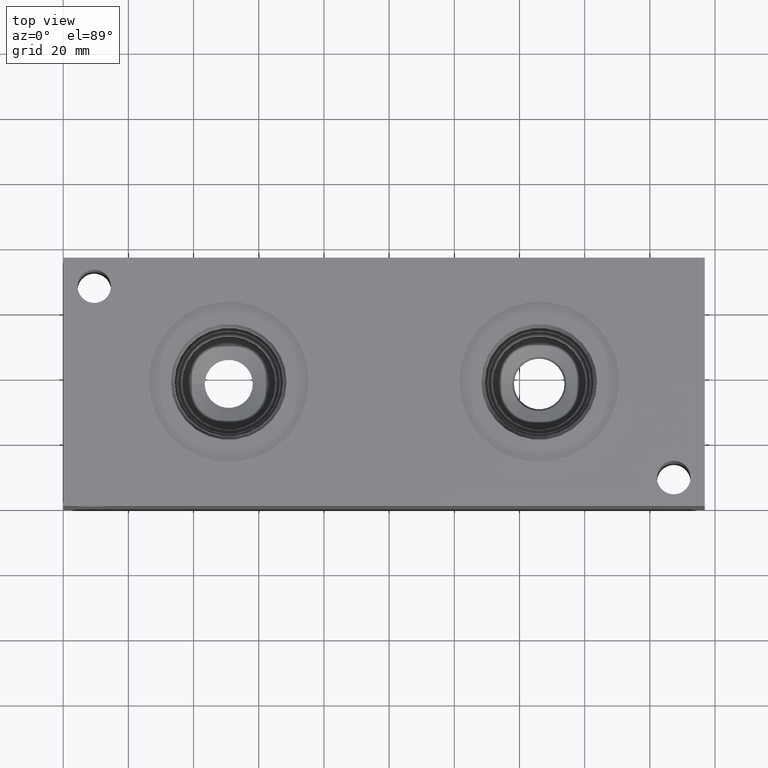
[diagram: clean part render]
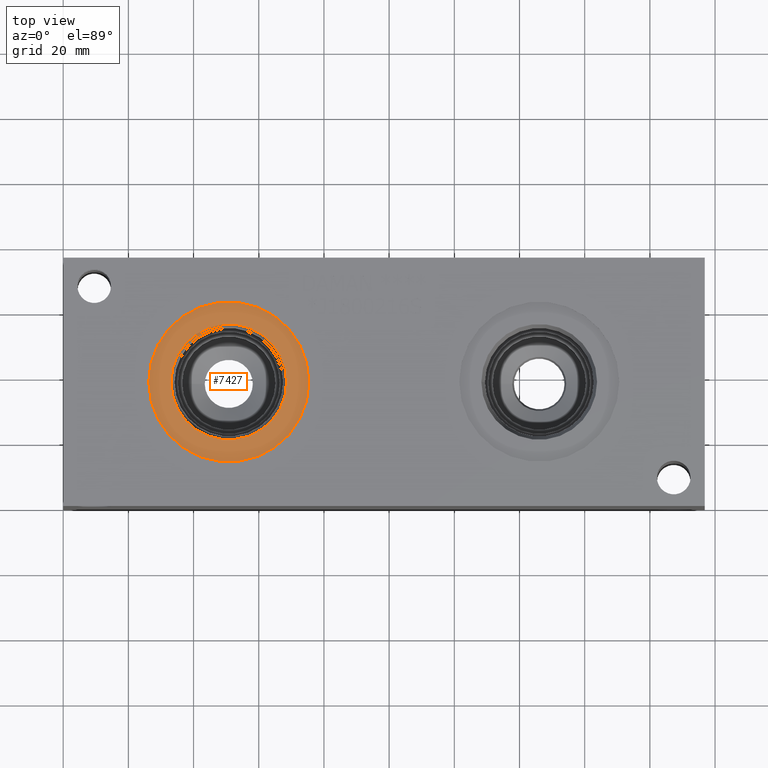
[diagram: same view with one face highlighted and labeled with its STEP entity id]
A machine part, top view. The second image highlights one B-rep face of the part: STEP entity #7427.
In plain terms, the highlighted planar face has unit normal (0, 0, -1).
Its self-contained STEP definition (entity closure, byte-faithful):
#163=CIRCLE('',#7813,24.5618);
#164=CIRCLE('',#7814,24.5618);
#165=CIRCLE('',#7816,17.7546);
#166=CIRCLE('',#7817,17.7546);
#209=FACE_BOUND('',#1319,.T.);
#900=FACE_OUTER_BOUND('',#1318,.T.);
#1318=EDGE_LOOP('',(#6472,#6473));
#1319=EDGE_LOOP('',(#6474,#6475));
#3435=VERTEX_POINT('',#12706);
#3436=VERTEX_POINT('',#12708);
#3437=VERTEX_POINT('',#12712);
#3438=VERTEX_POINT('',#12713);
#4455=EDGE_CURVE('',#3435,#3436,#163,.T.);
#4456=EDGE_CURVE('',#3436,#3435,#164,.T.);
#4457=EDGE_CURVE('',#3437,#3438,#165,.T.);
#4458=EDGE_CURVE('',#3438,#3437,#166,.T.);
#6472=ORIENTED_EDGE('',*,*,#4456,.F.);
#6473=ORIENTED_EDGE('',*,*,#4455,.F.);
#6474=ORIENTED_EDGE('',*,*,#4457,.T.);
#6475=ORIENTED_EDGE('',*,*,#4458,.T.);
#6744=PLANE('',#7815);
#7427=ADVANCED_FACE('',(#900,#209),#6744,.F.);
#7813=AXIS2_PLACEMENT_3D('',#12709,#9261,#9262);
#7814=AXIS2_PLACEMENT_3D('',#12710,#9263,#9264);
#7815=AXIS2_PLACEMENT_3D('',#12711,#9265,#9266);
#7816=AXIS2_PLACEMENT_3D('',#12714,#9267,#9268);
#7817=AXIS2_PLACEMENT_3D('',#12715,#9269,#9270);
#9261=DIRECTION('center_axis',(0.,0.,-1.));
#9262=DIRECTION('ref_axis',(1.,0.,0.));
#9263=DIRECTION('center_axis',(0.,0.,-1.));
#9264=DIRECTION('ref_axis',(1.,0.,0.));
#9265=DIRECTION('center_axis',(0.,0.,-1.));
#9266=DIRECTION('ref_axis',(-1.,0.,0.));
#9267=DIRECTION('center_axis',(0.,0.,-1.));
#9268=DIRECTION('ref_axis',(1.,0.,0.));
#9269=DIRECTION('center_axis',(0.,0.,-1.));
#9270=DIRECTION('ref_axis',(1.,0.,0.));
#12706=CARTESIAN_POINT('',(26.2382,38.1,75.4126));
#12708=CARTESIAN_POINT('',(75.3618,38.1,75.4126));
#12709=CARTESIAN_POINT('Origin',(50.8,38.1,75.4126));
#12710=CARTESIAN_POINT('Origin',(50.8,38.1,75.4126));
#12711=CARTESIAN_POINT('Origin',(68.5546,38.1,75.4126));
#12712=CARTESIAN_POINT('',(68.5546,38.1,75.4126));
#12713=CARTESIAN_POINT('',(33.0454,38.1,75.4126));
#12714=CARTESIAN_POINT('Origin',(50.8,38.1,75.4126));
#12715=CARTESIAN_POINT('Origin',(50.8,38.1,75.4126));